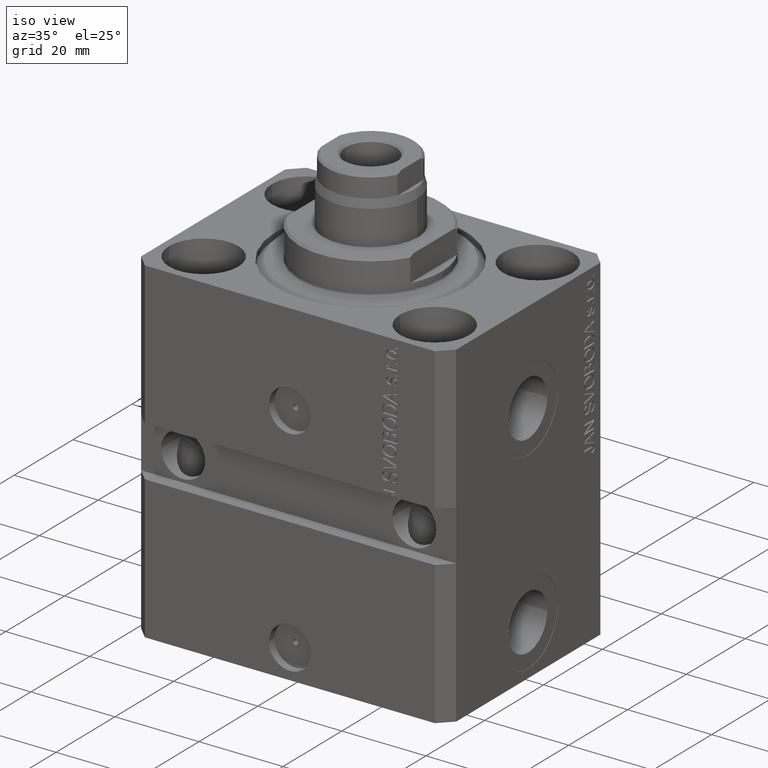
[diagram: clean part render]
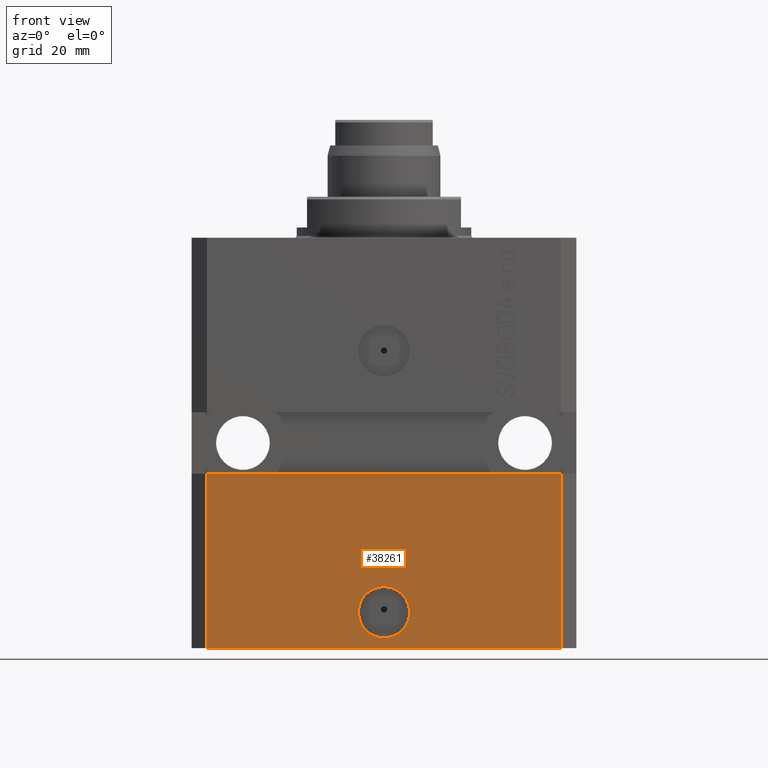
[diagram: tour spotlight — one face highlighted and labeled with its STEP entity id]
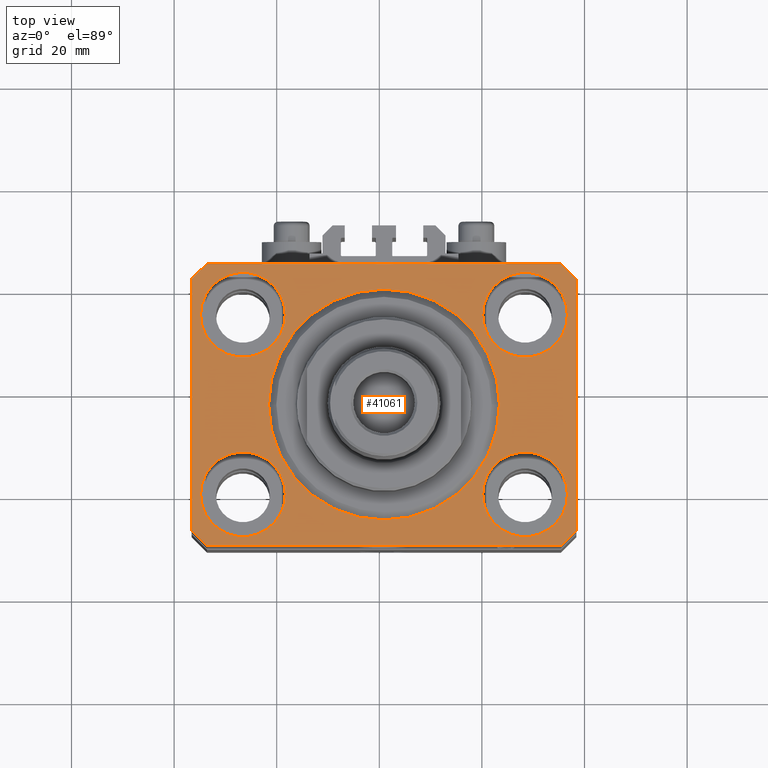
[diagram: tour spotlight — one face highlighted and labeled with its STEP entity id]
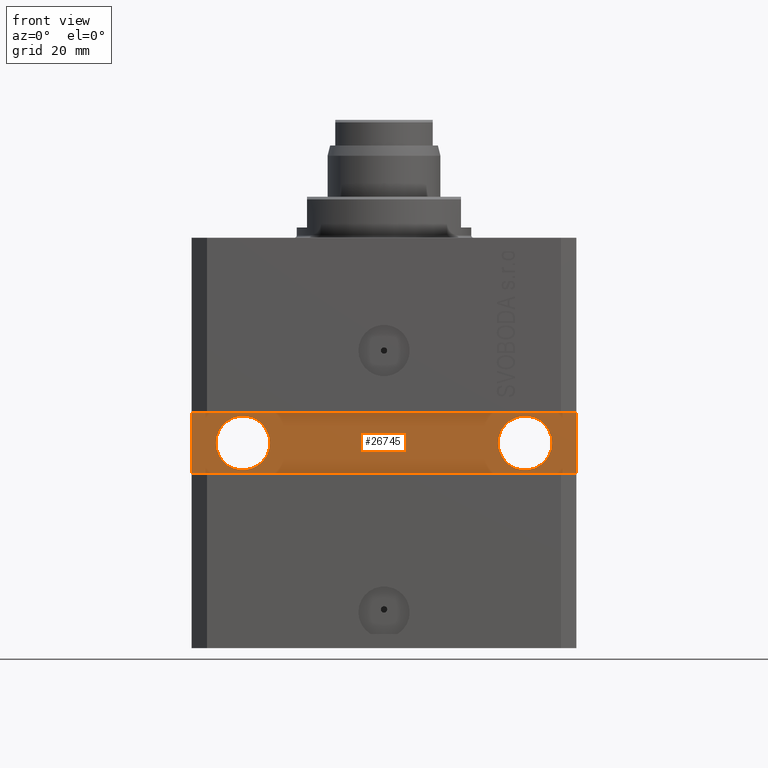
[diagram: tour spotlight — one face highlighted and labeled with its STEP entity id]
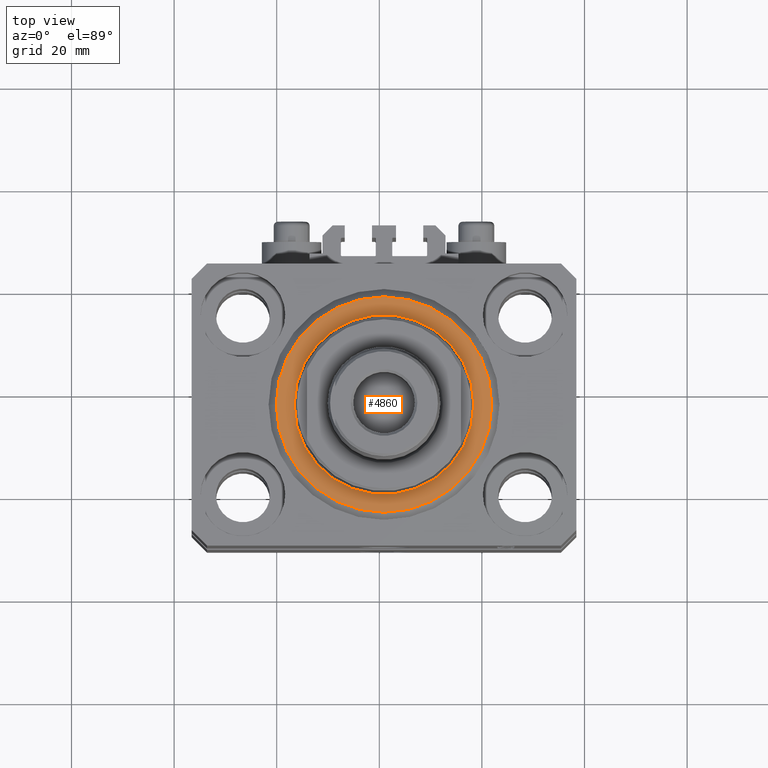
[diagram: tour spotlight — one face highlighted and labeled with its STEP entity id]
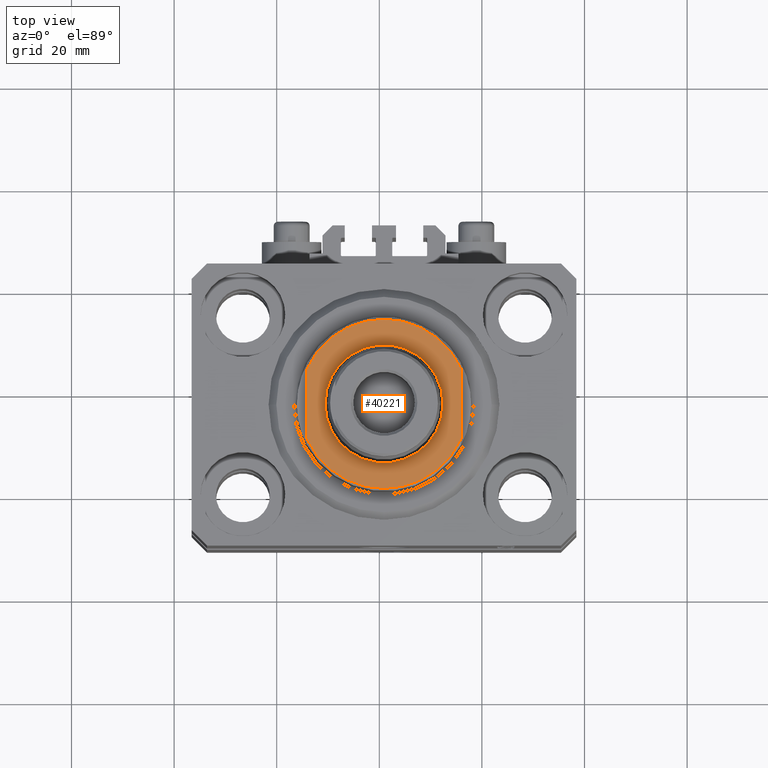
[diagram: tour spotlight — one face highlighted and labeled with its STEP entity id]
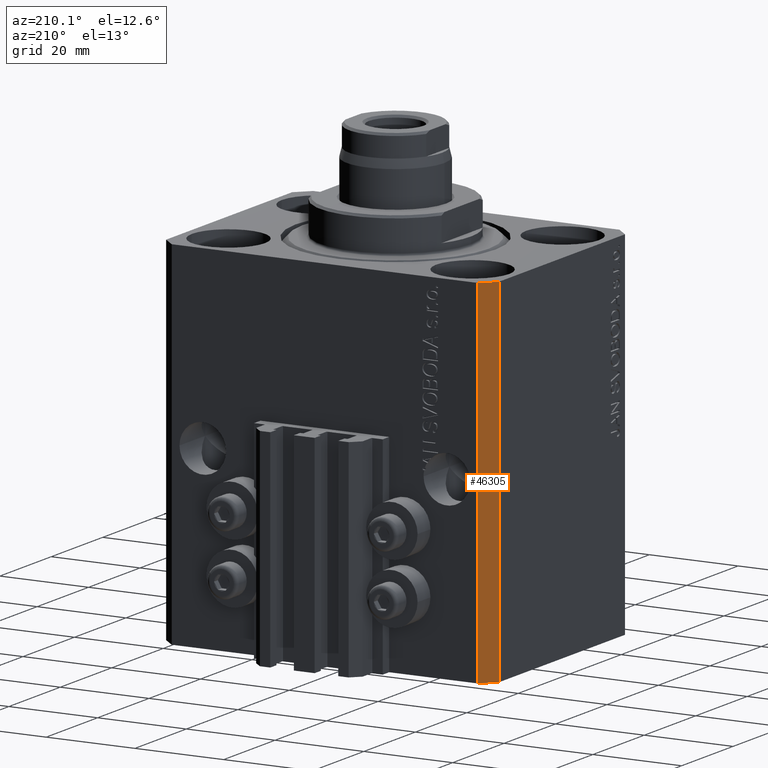
[diagram: tour spotlight — one face highlighted and labeled with its STEP entity id]
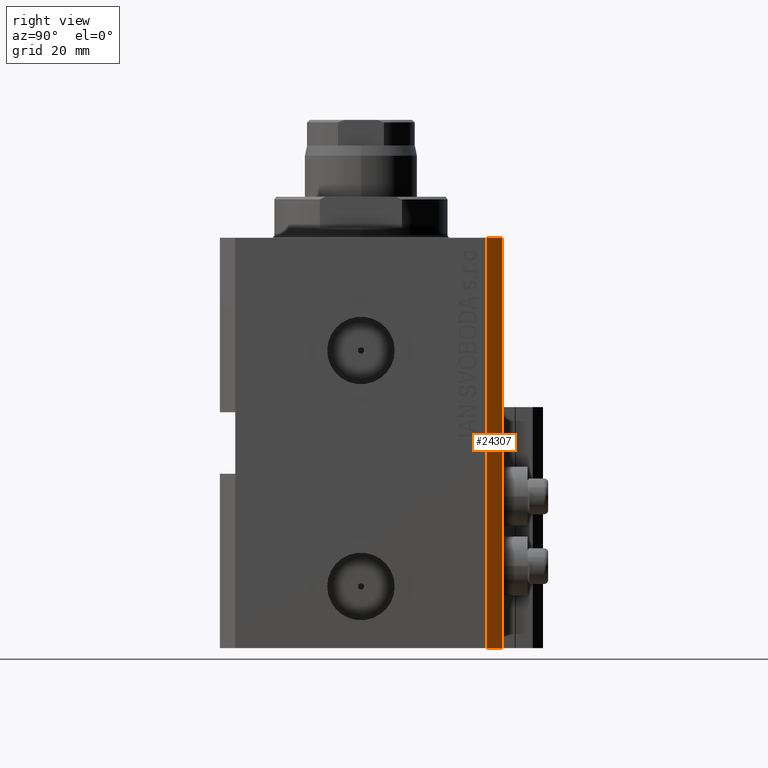
[diagram: tour spotlight — one face highlighted and labeled with its STEP entity id]
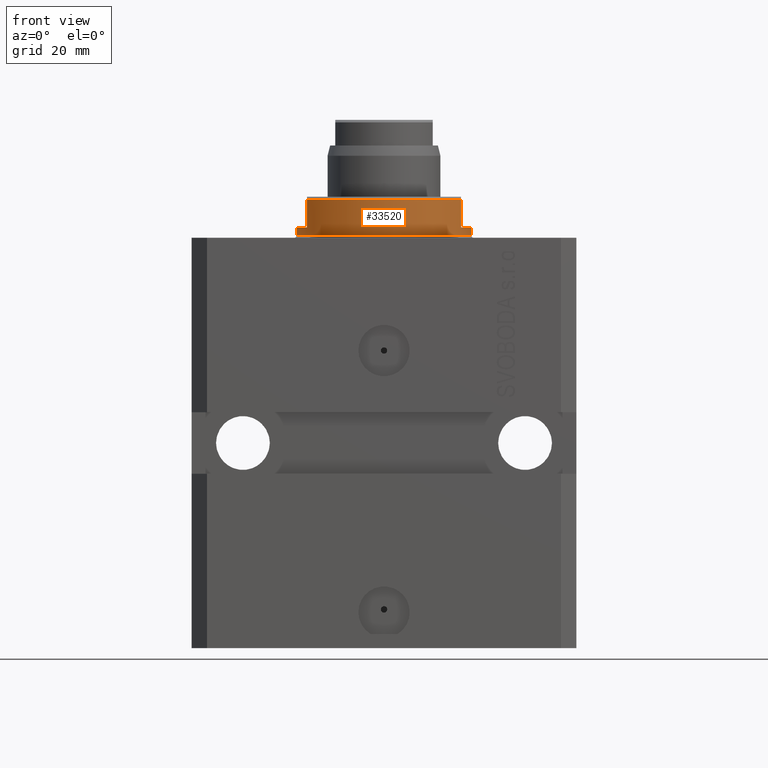
[diagram: tour spotlight — one face highlighted and labeled with its STEP entity id]
A machine part: a face-by-face anatomy tour. The part has 1061 B-rep faces; the first image is the clean iso view, then the 8 largest visible faces are spotlighted one at a time (largest first), each with its STEP entity span.

Face 1 — front view, entity #38261. In plain terms, the highlighted planar face has unit normal (0, -1, 0).
Definition (entity closure, byte-faithful):
#57 = AXIS2_PLACEMENT_3D ( 'NONE', #37444, #23475, #1932 ) ;
#893 = EDGE_CURVE ( 'NONE', #21298, #22198, #42517, .T. ) ;
#998 = CARTESIAN_POINT ( 'NONE',  ( -34.49999999999998579, -27.49999999999999645, -80.00000000000000000 ) ) ;
#1932 = DIRECTION ( 'NONE',  ( 1.000000000000000000, 0.000000000000000000, 0.000000000000000000 ) ) ;
#2950 = EDGE_CURVE ( 'NONE', #14207, #32096, #34094, .T. ) ;
#4971 = CARTESIAN_POINT ( 'NONE',  ( -34.49999999999998579, -27.49999999999999645, -80.00000000000000000 ) ) ;
#5328 = EDGE_CURVE ( 'NONE', #21298, #34619, #38150, .T. ) ;
#5649 = ORIENTED_EDGE ( 'NONE', *, *, #39212, .T. ) ;
#5728 = CARTESIAN_POINT ( 'NONE',  ( -34.49999999999998579, -27.49999999999999645, -80.00000000000000000 ) ) ;
#6340 = ORIENTED_EDGE ( 'NONE', *, *, #23097, .F. ) ;
#10093 = DIRECTION ( 'NONE',  ( 1.000000000000000000, 0.000000000000000000, 0.000000000000000000 ) ) ;
#10886 = EDGE_LOOP ( 'NONE', ( #17153, #28119, #22349, #5649 ) ) ;
#13863 = CARTESIAN_POINT ( 'NONE',  ( 34.49999999999999289, -27.49999999999999289, -46.00000000000000000 ) ) ;
#14207 = VERTEX_POINT ( 'NONE', #25752 ) ;
#14415 = DIRECTION ( 'NONE',  ( 0.000000000000000000, -0.000000000000000000, -1.000000000000000000 ) ) ;
#14516 = VECTOR ( 'NONE', #10093, 1000.000000000000000 ) ;
#16411 = LINE ( 'NONE', #24196, #40066 ) ;
#16613 = CARTESIAN_POINT ( 'NONE',  ( 34.49999999999999289, -27.49999999999999645, -80.00000000000000000 ) ) ;
#16989 = LINE ( 'NONE', #46087, #43504 ) ;
#17153 = ORIENTED_EDGE ( 'NONE', *, *, #25800, .F. ) ;
#21298 = VERTEX_POINT ( 'NONE', #998 ) ;
#22198 = VERTEX_POINT ( 'NONE', #16613 ) ;
#22349 = ORIENTED_EDGE ( 'NONE', *, *, #893, .T. ) ;
#23097 = EDGE_CURVE ( 'NONE', #32096, #14207, #25717, .T. ) ;
#23475 = DIRECTION ( 'NONE',  ( 1.176083712526788232E-16, -1.000000000000000000, 0.000000000000000000 ) ) ;
#23528 = DIRECTION ( 'NONE',  ( 1.000000000000000000, 0.000000000000000000, 0.000000000000000000 ) ) ;
#24196 = CARTESIAN_POINT ( 'NONE',  ( -37.50000000000000000, -27.50000000000000000, -46.00000000000000000 ) ) ;
#24462 = DIRECTION ( 'NONE',  ( 1.176083712526788232E-16, -1.000000000000000000, 0.000000000000000000 ) ) ;
#24550 = DIRECTION ( 'NONE',  ( 0.000000000000000000, 0.000000000000000000, 1.000000000000000000 ) ) ;
#24940 = EDGE_LOOP ( 'NONE', ( #6340, #30739 ) ) ;
#25717 = CIRCLE ( 'NONE', #43851, 5.000000000000006217 ) ;
#25752 = CARTESIAN_POINT ( 'NONE',  ( -5.000000000000006217, -27.49999999999999645, -73.00000000000000000 ) ) ;
#25800 = EDGE_CURVE ( 'NONE', #34619, #32590, #16411, .T. ) ;
#27081 = CARTESIAN_POINT ( 'NONE',  ( 0.000000000000000000, -27.49999999999999645, -73.00000000000000000 ) ) ;
#27980 = DIRECTION ( 'NONE',  ( 1.000000000000000000, 9.251858538542972814E-17, 0.000000000000000000 ) ) ;
#28119 = ORIENTED_EDGE ( 'NONE', *, *, #5328, .F. ) ;
#28851 = VECTOR ( 'NONE', #31057, 1000.000000000000000 ) ;
#30739 = ORIENTED_EDGE ( 'NONE', *, *, #2950, .F. ) ;
#31057 = DIRECTION ( 'NONE',  ( 0.000000000000000000, 0.000000000000000000, 1.000000000000000000 ) ) ;
#31335 = CARTESIAN_POINT ( 'NONE',  ( -34.49999999999998579, -27.50000000000000000, -46.00000000000000000 ) ) ;
#32096 = VERTEX_POINT ( 'NONE', #41973 ) ;
#32590 = VERTEX_POINT ( 'NONE', #13863 ) ;
#33099 = FACE_BOUND ( 'NONE', #24940, .T. ) ;
#34094 = CIRCLE ( 'NONE', #57, 5.000000000000006217 ) ;
#34619 = VERTEX_POINT ( 'NONE', #31335 ) ;
#35714 = PLANE ( 'NONE',  #44225 ) ;
#37444 = CARTESIAN_POINT ( 'NONE',  ( 0.000000000000000000, -27.49999999999999645, -73.00000000000000000 ) ) ;
#38150 = LINE ( 'NONE', #5728, #28851 ) ;
#38261 = ADVANCED_FACE ( 'NONE', ( #33099, #43512 ), #35714, .T. ) ;
#39212 = EDGE_CURVE ( 'NONE', #22198, #32590, #16989, .T. ) ;
#40066 = VECTOR ( 'NONE', #27980, 1000.000000000000000 ) ;
#41973 = CARTESIAN_POINT ( 'NONE',  ( 5.000000000000006217, -27.49999999999999645, -73.00000000000000000 ) ) ;
#42517 = LINE ( 'NONE', #4971, #14516 ) ;
#43504 = VECTOR ( 'NONE', #24550, 1000.000000000000000 ) ;
#43512 = FACE_OUTER_BOUND ( 'NONE', #10886, .T. ) ;
#43851 = AXIS2_PLACEMENT_3D ( 'NONE', #27081, #24462, #23528 ) ;
#44225 = AXIS2_PLACEMENT_3D ( 'NONE', #46830, #46600, #14415 ) ;
#46087 = CARTESIAN_POINT ( 'NONE',  ( 34.49999999999999289, -27.49999999999999645, -80.00000000000000000 ) ) ;
#46600 = DIRECTION ( 'NONE',  ( 0.000000000000000000, -1.000000000000000000, 0.000000000000000000 ) ) ;
#46830 = CARTESIAN_POINT ( 'NONE',  ( -34.49999999999998579, -27.49999999999999645, -80.00000000000000000 ) ) ;

Face 2 — top view, entity #41061. In plain terms, the highlighted planar face has unit normal (0, 0, 1).
Definition (entity closure, byte-faithful):
#1141 = VECTOR ( 'NONE', #44498, 1000.000000000000000 ) ;
#1627 = DIRECTION ( 'NONE',  ( 0.000000000000000000, 0.000000000000000000, 1.000000000000000000 ) ) ;
#1728 = CARTESIAN_POINT ( 'NONE',  ( 37.50000000000051870, 24.49999999999995381, 0.000000000000000000 ) ) ;
#1859 = CARTESIAN_POINT ( 'NONE',  ( -27.50000000000000355, -17.50000000000000000, 0.000000000000000000 ) ) ;
#2384 = EDGE_CURVE ( 'NONE', #44266, #8776, #35679, .T. ) ;
#3404 = VERTEX_POINT ( 'NONE', #26404 ) ;
#3434 = EDGE_CURVE ( 'NONE', #24403, #21497, #38613, .T. ) ;
#4041 = DIRECTION ( 'NONE',  ( 0.000000000000000000, 0.000000000000000000, 1.000000000000000000 ) ) ;
#5866 = VERTEX_POINT ( 'NONE', #28554 ) ;
#6003 = DIRECTION ( 'NONE',  ( 1.000000000000000000, 0.000000000000000000, 0.000000000000000000 ) ) ;
#6072 = VECTOR ( 'NONE', #16183, 1000.000000000000114 ) ;
#6366 = AXIS2_PLACEMENT_3D ( 'NONE', #9484, #45926, #24151 ) ;
#6443 = AXIS2_PLACEMENT_3D ( 'NONE', #35905, #42301, #35663 ) ;
#6691 = CARTESIAN_POINT ( 'NONE',  ( 34.49999999999999289, -27.49999999999999645, 0.000000000000000000 ) ) ;
#7662 = CIRCLE ( 'NONE', #16771, 8.250000000000000000 ) ;
#8027 = CARTESIAN_POINT ( 'NONE',  ( -34.49999999999999289, 27.50000000000000000, 0.000000000000000000 ) ) ;
#8509 = CARTESIAN_POINT ( 'NONE',  ( 37.49999999999999289, -24.50000000000000000, 0.000000000000000000 ) ) ;
#8637 = AXIS2_PLACEMENT_3D ( 'NONE', #30670, #27111, #41537 ) ;
#8720 = LINE ( 'NONE', #8027, #9448 ) ;
#8776 = VERTEX_POINT ( 'NONE', #46594 ) ;
#9072 = CARTESIAN_POINT ( 'NONE',  ( -37.49999999999999289, -24.50000000000000000, 0.000000000000000000 ) ) ;
#9140 = DIRECTION ( 'NONE',  ( 0.000000000000000000, 0.000000000000000000, 1.000000000000000000 ) ) ;
#9199 = DIRECTION ( 'NONE',  ( 0.000000000000000000, 0.000000000000000000, 1.000000000000000000 ) ) ;
#9448 = VECTOR ( 'NONE', #36901, 1000.000000000000000 ) ;
#9484 = CARTESIAN_POINT ( 'NONE',  ( 0.000000000000000000, 0.000000000000000000, 0.000000000000000000 ) ) ;
#9562 = LINE ( 'NONE', #23997, #32059 ) ;
#9949 = FACE_BOUND ( 'NONE', #36243, .T. ) ;
#10234 = VERTEX_POINT ( 'NONE', #16230 ) ;
#10291 = EDGE_CURVE ( 'NONE', #11976, #32802, #16191, .T. ) ;
#10399 = EDGE_CURVE ( 'NONE', #10234, #18086, #18451, .T. ) ;
#11161 = EDGE_LOOP ( 'NONE', ( #36001, #18258 ) ) ;
#11542 = CARTESIAN_POINT ( 'NONE',  ( -37.49999999999999289, -24.50000000000000000, 0.000000000000000000 ) ) ;
#11550 = CARTESIAN_POINT ( 'NONE',  ( 37.49999999999999289, -24.50000000000000000, 0.000000000000000000 ) ) ;
#11976 = VERTEX_POINT ( 'NONE', #18027 ) ;
#12090 = EDGE_CURVE ( 'NONE', #8776, #44266, #32128, .T. ) ;
#12512 = EDGE_CURVE ( 'NONE', #19158, #13430, #36649, .T. ) ;
#12994 = ORIENTED_EDGE ( 'NONE', *, *, #19614, .T. ) ;
#13152 = VECTOR ( 'NONE', #13747, 1000.000000000000000 ) ;
#13163 = EDGE_LOOP ( 'NONE', ( #37786, #42287 ) ) ;
#13194 = EDGE_LOOP ( 'NONE', ( #39625, #27974 ) ) ;
#13244 = ORIENTED_EDGE ( 'NONE', *, *, #10291, .F. ) ;
#13430 = VERTEX_POINT ( 'NONE', #14872 ) ;
#13747 = DIRECTION ( 'NONE',  ( 0.000000000000000000, -1.000000000000000000, 0.000000000000000000 ) ) ;
#13926 = AXIS2_PLACEMENT_3D ( 'NONE', #46354, #14403, #25277 ) ;
#13935 = CARTESIAN_POINT ( 'NONE',  ( 34.50000000000056843, 27.50000000000000000, 0.000000000000000000 ) ) ;
#14403 = DIRECTION ( 'NONE',  ( 0.000000000000000000, 0.000000000000000000, 1.000000000000000000 ) ) ;
#14872 = CARTESIAN_POINT ( 'NONE',  ( -35.75000000000000711, -17.50000000000000000, 0.000000000000000000 ) ) ;
#15286 = AXIS2_PLACEMENT_3D ( 'NONE', #41814, #9140, #34484 ) ;
#16183 = DIRECTION ( 'NONE',  ( -0.7071067811865356934, 0.7071067811865594521, 0.000000000000000000 ) ) ;
#16191 = CIRCLE ( 'NONE', #8637, 8.250000000000000000 ) ;
#16230 = CARTESIAN_POINT ( 'NONE',  ( 19.25000000000000000, 17.50000000000001066, 0.000000000000000000 ) ) ;
#16488 = ORIENTED_EDGE ( 'NONE', *, *, #10399, .F. ) ;
#16602 = PLANE ( 'NONE',  #6366 ) ;
#16716 = CARTESIAN_POINT ( 'NONE',  ( 35.74999999999999289, 17.50000000000001066, 0.000000000000000000 ) ) ;
#16771 = AXIS2_PLACEMENT_3D ( 'NONE', #1859, #1627, #20323 ) ;
#16946 = DIRECTION ( 'NONE',  ( 1.000000000000000000, 0.000000000000000000, 0.000000000000000000 ) ) ;
#17240 = ORIENTED_EDGE ( 'NONE', *, *, #20210, .T. ) ;
#17475 = ORIENTED_EDGE ( 'NONE', *, *, #36431, .T. ) ;
#17751 = LINE ( 'NONE', #46848, #29926 ) ;
#17960 = EDGE_CURVE ( 'NONE', #18086, #10234, #21022, .T. ) ;
#18027 = CARTESIAN_POINT ( 'NONE',  ( 19.25000000000000000, -17.50000000000000000, 0.000000000000000000 ) ) ;
#18086 = VERTEX_POINT ( 'NONE', #16716 ) ;
#18258 = ORIENTED_EDGE ( 'NONE', *, *, #23479, .F. ) ;
#18423 = ORIENTED_EDGE ( 'NONE', *, *, #26706, .T. ) ;
#18451 = CIRCLE ( 'NONE', #13926, 8.249999999999992895 ) ;
#18723 = CARTESIAN_POINT ( 'NONE',  ( -27.50000000000000355, 17.50000000000000000, 0.000000000000000000 ) ) ;
#18982 = VERTEX_POINT ( 'NONE', #9072 ) ;
#19158 = VERTEX_POINT ( 'NONE', #35570 ) ;
#19614 = EDGE_CURVE ( 'NONE', #18982, #5866, #30212, .T. ) ;
#20210 = EDGE_CURVE ( 'NONE', #3404, #20941, #39124, .T. ) ;
#20322 = ORIENTED_EDGE ( 'NONE', *, *, #41394, .T. ) ;
#20323 = DIRECTION ( 'NONE',  ( 1.000000000000000000, 0.000000000000000000, 0.000000000000000000 ) ) ;
#20722 = CARTESIAN_POINT ( 'NONE',  ( 27.49999999999999645, 17.50000000000001066, 0.000000000000000000 ) ) ;
#20783 = VERTEX_POINT ( 'NONE', #13935 ) ;
#20808 = AXIS2_PLACEMENT_3D ( 'NONE', #18723, #4041, #25590 ) ;
#20941 = VERTEX_POINT ( 'NONE', #11550 ) ;
#21022 = CIRCLE ( 'NONE', #30863, 8.249999999999992895 ) ;
#21497 = VERTEX_POINT ( 'NONE', #38846 ) ;
#23479 = EDGE_CURVE ( 'NONE', #21497, #24403, #35577, .T. ) ;
#23997 = CARTESIAN_POINT ( 'NONE',  ( -34.49999999999998579, -27.49999999999999645, 0.000000000000000000 ) ) ;
#24151 = DIRECTION ( 'NONE',  ( 1.000000000000000000, 0.000000000000000000, -0.000000000000000000 ) ) ;
#24203 = EDGE_LOOP ( 'NONE', ( #25421, #16488 ) ) ;
#24263 = AXIS2_PLACEMENT_3D ( 'NONE', #38215, #30655, #30416 ) ;
#24265 = AXIS2_PLACEMENT_3D ( 'NONE', #36861, #28826, #29529 ) ;
#24389 = FACE_BOUND ( 'NONE', #13163, .T. ) ;
#24403 = VERTEX_POINT ( 'NONE', #45715 ) ;
#25277 = DIRECTION ( 'NONE',  ( 1.000000000000000000, 0.000000000000000000, 0.000000000000000000 ) ) ;
#25421 = ORIENTED_EDGE ( 'NONE', *, *, #17960, .F. ) ;
#25590 = DIRECTION ( 'NONE',  ( 1.000000000000000000, 0.000000000000000000, 0.000000000000000000 ) ) ;
#26207 = DIRECTION ( 'NONE',  ( 0.7071067811865483499, -0.7071067811865466846, 0.000000000000000000 ) ) ;
#26404 = CARTESIAN_POINT ( 'NONE',  ( 34.49999999999999289, -27.49999999999999645, 0.000000000000000000 ) ) ;
#26428 = ORIENTED_EDGE ( 'NONE', *, *, #37656, .T. ) ;
#26706 = EDGE_CURVE ( 'NONE', #36921, #20783, #34165, .T. ) ;
#27111 = DIRECTION ( 'NONE',  ( 0.000000000000000000, 0.000000000000000000, 1.000000000000000000 ) ) ;
#27974 = ORIENTED_EDGE ( 'NONE', *, *, #2384, .F. ) ;
#28506 = CARTESIAN_POINT ( 'NONE',  ( 35.75000000000000711, -17.50000000000000000, 0.000000000000000000 ) ) ;
#28554 = CARTESIAN_POINT ( 'NONE',  ( -34.49999999999998579, -27.49999999999999645, 0.000000000000000000 ) ) ;
#28826 = DIRECTION ( 'NONE',  ( 0.000000000000000000, 0.000000000000000000, 1.000000000000000000 ) ) ;
#28876 = CARTESIAN_POINT ( 'NONE',  ( -37.49999999999999289, 24.50000000000000000, 0.000000000000000000 ) ) ;
#28972 = ORIENTED_EDGE ( 'NONE', *, *, #44767, .T. ) ;
#29396 = CARTESIAN_POINT ( 'NONE',  ( -37.49999999999999289, 24.50000000000000000, 0.000000000000000000 ) ) ;
#29529 = DIRECTION ( 'NONE',  ( 1.000000000000000000, 0.000000000000000000, 0.000000000000000000 ) ) ;
#29884 = EDGE_CURVE ( 'NONE', #32802, #11976, #37158, .T. ) ;
#29923 = EDGE_CURVE ( 'NONE', #13430, #19158, #7662, .T. ) ;
#29926 = VECTOR ( 'NONE', #32185, 1000.000000000000000 ) ;
#30212 = LINE ( 'NONE', #11542, #37707 ) ;
#30416 = DIRECTION ( 'NONE',  ( 1.000000000000000000, 0.000000000000000000, 0.000000000000000000 ) ) ;
#30655 = DIRECTION ( 'NONE',  ( 0.000000000000000000, 0.000000000000000000, 1.000000000000000000 ) ) ;
#30670 = CARTESIAN_POINT ( 'NONE',  ( 27.50000000000000355, -17.50000000000000000, 0.000000000000000000 ) ) ;
#30863 = AXIS2_PLACEMENT_3D ( 'NONE', #20722, #35161, #16946 ) ;
#30983 = CARTESIAN_POINT ( 'NONE',  ( 27.50000000000000355, -17.50000000000000000, 0.000000000000000000 ) ) ;
#31317 = CARTESIAN_POINT ( 'NONE',  ( -35.75000000000000711, 17.50000000000000000, 0.000000000000000000 ) ) ;
#32059 = VECTOR ( 'NONE', #6003, 1000.000000000000000 ) ;
#32128 = CIRCLE ( 'NONE', #20808, 8.250000000000000000 ) ;
#32185 = DIRECTION ( 'NONE',  ( -1.000000000000000000, 0.000000000000000000, 0.000000000000000000 ) ) ;
#32662 = LINE ( 'NONE', #28876, #13152 ) ;
#32802 = VERTEX_POINT ( 'NONE', #28506 ) ;
#34165 = LINE ( 'NONE', #1728, #6072 ) ;
#34309 = LINE ( 'NONE', #8509, #1141 ) ;
#34484 = DIRECTION ( 'NONE',  ( 1.000000000000000000, 0.000000000000000000, 0.000000000000000000 ) ) ;
#34878 = EDGE_CURVE ( 'NONE', #40943, #18982, #32662, .T. ) ;
#35161 = DIRECTION ( 'NONE',  ( 0.000000000000000000, 0.000000000000000000, 1.000000000000000000 ) ) ;
#35570 = CARTESIAN_POINT ( 'NONE',  ( -19.25000000000000355, -17.50000000000000000, 0.000000000000000000 ) ) ;
#35577 = CIRCLE ( 'NONE', #24265, 22.50000000000000355 ) ;
#35663 = DIRECTION ( 'NONE',  ( 1.000000000000000000, 0.000000000000000000, 0.000000000000000000 ) ) ;
#35679 = CIRCLE ( 'NONE', #15286, 8.250000000000000000 ) ;
#35905 = CARTESIAN_POINT ( 'NONE',  ( -27.50000000000000355, -17.50000000000000000, 0.000000000000000000 ) ) ;
#36001 = ORIENTED_EDGE ( 'NONE', *, *, #3434, .F. ) ;
#36243 = EDGE_LOOP ( 'NONE', ( #42776, #13244 ) ) ;
#36380 = AXIS2_PLACEMENT_3D ( 'NONE', #30983, #9199, #38316 ) ;
#36431 = EDGE_CURVE ( 'NONE', #5866, #3404, #9562, .T. ) ;
#36649 = CIRCLE ( 'NONE', #6443, 8.250000000000000000 ) ;
#36861 = CARTESIAN_POINT ( 'NONE',  ( 0.000000000000000000, 0.000000000000000000, 0.000000000000000000 ) ) ;
#36901 = DIRECTION ( 'NONE',  ( -0.7071067811865471286, -0.7071067811865479058, 0.000000000000000000 ) ) ;
#36921 = VERTEX_POINT ( 'NONE', #46757 ) ;
#37158 = CIRCLE ( 'NONE', #36380, 8.250000000000000000 ) ;
#37656 = EDGE_CURVE ( 'NONE', #20941, #36921, #34309, .T. ) ;
#37707 = VECTOR ( 'NONE', #26207, 1000.000000000000000 ) ;
#37786 = ORIENTED_EDGE ( 'NONE', *, *, #12512, .F. ) ;
#37884 = FACE_BOUND ( 'NONE', #24203, .T. ) ;
#38215 = CARTESIAN_POINT ( 'NONE',  ( 0.000000000000000000, 0.000000000000000000, 0.000000000000000000 ) ) ;
#38316 = DIRECTION ( 'NONE',  ( 1.000000000000000000, 0.000000000000000000, 0.000000000000000000 ) ) ;
#38586 = FACE_BOUND ( 'NONE', #11161, .T. ) ;
#38613 = CIRCLE ( 'NONE', #24263, 22.50000000000000355 ) ;
#38846 = CARTESIAN_POINT ( 'NONE',  ( -22.50000000000000355, 2.755455298081545172E-15, 0.000000000000000000 ) ) ;
#39124 = LINE ( 'NONE', #6691, #46026 ) ;
#39625 = ORIENTED_EDGE ( 'NONE', *, *, #12090, .F. ) ;
#40664 = ORIENTED_EDGE ( 'NONE', *, *, #34878, .T. ) ;
#40929 = VERTEX_POINT ( 'NONE', #43358 ) ;
#40943 = VERTEX_POINT ( 'NONE', #29396 ) ;
#41061 = ADVANCED_FACE ( 'NONE', ( #24389, #9949, #37884, #42142, #38586, #42367 ), #16602, .T. ) ;
#41394 = EDGE_CURVE ( 'NONE', #40929, #40943, #8720, .T. ) ;
#41537 = DIRECTION ( 'NONE',  ( 1.000000000000000000, 0.000000000000000000, 0.000000000000000000 ) ) ;
#41814 = CARTESIAN_POINT ( 'NONE',  ( -27.50000000000000355, 17.50000000000000000, 0.000000000000000000 ) ) ;
#42142 = FACE_BOUND ( 'NONE', #13194, .T. ) ;
#42209 = EDGE_LOOP ( 'NONE', ( #28972, #20322, #40664, #12994, #17475, #17240, #26428, #18423 ) ) ;
#42287 = ORIENTED_EDGE ( 'NONE', *, *, #29923, .F. ) ;
#42301 = DIRECTION ( 'NONE',  ( 0.000000000000000000, 0.000000000000000000, 1.000000000000000000 ) ) ;
#42367 = FACE_OUTER_BOUND ( 'NONE', #42209, .T. ) ;
#42776 = ORIENTED_EDGE ( 'NONE', *, *, #29884, .F. ) ;
#42908 = DIRECTION ( 'NONE',  ( 0.7071067811865474617, 0.7071067811865474617, 0.000000000000000000 ) ) ;
#43358 = CARTESIAN_POINT ( 'NONE',  ( -34.49999999999999289, 27.50000000000000000, 0.000000000000000000 ) ) ;
#44266 = VERTEX_POINT ( 'NONE', #31317 ) ;
#44498 = DIRECTION ( 'NONE',  ( 1.076236605503979380E-14, 1.000000000000000000, 0.000000000000000000 ) ) ;
#44767 = EDGE_CURVE ( 'NONE', #20783, #40929, #17751, .T. ) ;
#45715 = CARTESIAN_POINT ( 'NONE',  ( 22.50000000000000355, 0.000000000000000000, 0.000000000000000000 ) ) ;
#45926 = DIRECTION ( 'NONE',  ( 0.000000000000000000, 0.000000000000000000, 1.000000000000000000 ) ) ;
#46026 = VECTOR ( 'NONE', #42908, 1000.000000000000114 ) ;
#46354 = CARTESIAN_POINT ( 'NONE',  ( 27.49999999999999645, 17.50000000000001066, 0.000000000000000000 ) ) ;
#46594 = CARTESIAN_POINT ( 'NONE',  ( -19.25000000000000355, 17.50000000000000000, 0.000000000000000000 ) ) ;
#46757 = CARTESIAN_POINT ( 'NONE',  ( 37.50000000000051870, 24.49999999999995381, 0.000000000000000000 ) ) ;
#46848 = CARTESIAN_POINT ( 'NONE',  ( 34.50000000000056843, 27.50000000000000000, 0.000000000000000000 ) ) ;

Face 3 — front view, entity #26745. In plain terms, the highlighted planar face has unit normal (0, -1, 0).
Definition (entity closure, byte-faithful):
#188 = EDGE_CURVE ( 'NONE', #15016, #27610, #10673, .T. ) ;
#1858 = VERTEX_POINT ( 'NONE', #39499 ) ;
#3509 = EDGE_CURVE ( 'NONE', #14013, #34223, #14297, .T. ) ;
#3686 = VERTEX_POINT ( 'NONE', #37681 ) ;
#4332 = CARTESIAN_POINT ( 'NONE',  ( -27.49999999999999289, -24.50000000000000000, -40.00000000000000711 ) ) ;
#4345 = EDGE_CURVE ( 'NONE', #1858, #42064, #9181, .T. ) ;
#5868 = LINE ( 'NONE', #23621, #22705 ) ;
#7085 = CIRCLE ( 'NONE', #19924, 5.249999999999994671 ) ;
#7087 = CARTESIAN_POINT ( 'NONE',  ( 37.49999999999999289, -24.49999999999999289, -33.99999999999998579 ) ) ;
#7437 = CARTESIAN_POINT ( 'NONE',  ( 37.49999999999999289, -24.49999999999999289, -33.99999999999998579 ) ) ;
#8625 = DIRECTION ( 'NONE',  ( 1.171720209325604191E-16, -1.000000000000000000, 0.000000000000000000 ) ) ;
#9181 = CIRCLE ( 'NONE', #12205, 5.249999999999997335 ) ;
#9494 = VECTOR ( 'NONE', #32300, 1000.000000000000000 ) ;
#9566 = EDGE_CURVE ( 'NONE', #27610, #15016, #7085, .T. ) ;
#10028 = CIRCLE ( 'NONE', #38787, 5.249999999999997335 ) ;
#10673 = CIRCLE ( 'NONE', #12176, 5.249999999999994671 ) ;
#11798 = ORIENTED_EDGE ( 'NONE', *, *, #9566, .F. ) ;
#11874 = ORIENTED_EDGE ( 'NONE', *, *, #188, .F. ) ;
#12176 = AXIS2_PLACEMENT_3D ( 'NONE', #18600, #8625, #25928 ) ;
#12205 = AXIS2_PLACEMENT_3D ( 'NONE', #4332, #14779, #25647 ) ;
#14013 = VERTEX_POINT ( 'NONE', #24816 ) ;
#14297 = LINE ( 'NONE', #24933, #18214 ) ;
#14779 = DIRECTION ( 'NONE',  ( 1.101411730780568590E-16, -1.000000000000000000, 0.000000000000000000 ) ) ;
#15016 = VERTEX_POINT ( 'NONE', #41009 ) ;
#15648 = CARTESIAN_POINT ( 'NONE',  ( 27.50000000000000711, -24.49999999999999289, -40.00000000000000000 ) ) ;
#17871 = LINE ( 'NONE', #7437, #9494 ) ;
#17995 = CARTESIAN_POINT ( 'NONE',  ( -22.24999999999999645, -24.50000000000000000, -40.00000000000000711 ) ) ;
#18214 = VECTOR ( 'NONE', #39605, 1000.000000000000000 ) ;
#18600 = CARTESIAN_POINT ( 'NONE',  ( 27.50000000000000711, -24.49999999999999289, -40.00000000000000000 ) ) ;
#19496 = CARTESIAN_POINT ( 'NONE',  ( 32.75000000000000000, -24.49999999999999289, -40.00000000000000000 ) ) ;
#19615 = EDGE_LOOP ( 'NONE', ( #27002, #20172 ) ) ;
#19924 = AXIS2_PLACEMENT_3D ( 'NONE', #15648, #26754, #44509 ) ;
#20172 = ORIENTED_EDGE ( 'NONE', *, *, #4345, .F. ) ;
#20357 = CARTESIAN_POINT ( 'NONE',  ( -27.49999999999999289, -24.50000000000000000, -40.00000000000000711 ) ) ;
#20896 = FACE_BOUND ( 'NONE', #31596, .T. ) ;
#22616 = VERTEX_POINT ( 'NONE', #35455 ) ;
#22705 = VECTOR ( 'NONE', #27410, 1000.000000000000000 ) ;
#23584 = ORIENTED_EDGE ( 'NONE', *, *, #26429, .T. ) ;
#23621 = CARTESIAN_POINT ( 'NONE',  ( -37.50000000000000000, -24.50000000000000000, -46.00000000000000000 ) ) ;
#24816 = CARTESIAN_POINT ( 'NONE',  ( 37.49999999999999289, -24.49999999999999289, -46.00000000000000000 ) ) ;
#24933 = CARTESIAN_POINT ( 'NONE',  ( 37.49999999999999289, -24.49999999999999289, -46.00000000000000000 ) ) ;
#25647 = DIRECTION ( 'NONE',  ( 1.000000000000000000, 0.000000000000000000, 0.000000000000000000 ) ) ;
#25928 = DIRECTION ( 'NONE',  ( 1.000000000000000000, 0.000000000000000000, 0.000000000000000000 ) ) ;
#26429 = EDGE_CURVE ( 'NONE', #3686, #14013, #5868, .T. ) ;
#26745 = ADVANCED_FACE ( 'NONE', ( #20896, #27990, #45511 ), #38646, .T. ) ;
#26754 = DIRECTION ( 'NONE',  ( 1.171720209325604191E-16, -1.000000000000000000, 0.000000000000000000 ) ) ;
#27002 = ORIENTED_EDGE ( 'NONE', *, *, #33196, .F. ) ;
#27410 = DIRECTION ( 'NONE',  ( 1.000000000000000000, 9.251858538542972814E-17, 0.000000000000000000 ) ) ;
#27610 = VERTEX_POINT ( 'NONE', #19496 ) ;
#27773 = DIRECTION ( 'NONE',  ( 9.251858538542972814E-17, -1.000000000000000000, 0.000000000000000000 ) ) ;
#27990 = FACE_BOUND ( 'NONE', #19615, .T. ) ;
#30854 = DIRECTION ( 'NONE',  ( 1.000000000000000000, 9.251858538542972814E-17, 0.000000000000000000 ) ) ;
#31230 = ORIENTED_EDGE ( 'NONE', *, *, #3509, .T. ) ;
#31596 = EDGE_LOOP ( 'NONE', ( #11798, #11874 ) ) ;
#32300 = DIRECTION ( 'NONE',  ( -1.000000000000000000, -9.251858538542972814E-17, -1.850371707708594563E-16 ) ) ;
#33196 = EDGE_CURVE ( 'NONE', #42064, #1858, #10028, .T. ) ;
#34223 = VERTEX_POINT ( 'NONE', #7087 ) ;
#34331 = DIRECTION ( 'NONE',  ( 1.000000000000000000, 0.000000000000000000, 0.000000000000000000 ) ) ;
#35455 = CARTESIAN_POINT ( 'NONE',  ( -37.50000000000000000, -24.50000000000000000, -34.00000000000000000 ) ) ;
#35559 = CARTESIAN_POINT ( 'NONE',  ( 2.191435984341280931E-15, -24.49999999999999645, 0.000000000000000000 ) ) ;
#35929 = ORIENTED_EDGE ( 'NONE', *, *, #44499, .T. ) ;
#37187 = DIRECTION ( 'NONE',  ( 0.000000000000000000, 0.000000000000000000, -1.000000000000000000 ) ) ;
#37681 = CARTESIAN_POINT ( 'NONE',  ( -37.50000000000000000, -24.50000000000000000, -46.00000000000000000 ) ) ;
#37810 = EDGE_LOOP ( 'NONE', ( #23584, #31230, #43283, #35929 ) ) ;
#38352 = DIRECTION ( 'NONE',  ( 1.101411730780568590E-16, -1.000000000000000000, 0.000000000000000000 ) ) ;
#38646 = PLANE ( 'NONE',  #41625 ) ;
#38787 = AXIS2_PLACEMENT_3D ( 'NONE', #20357, #38352, #34331 ) ;
#39499 = CARTESIAN_POINT ( 'NONE',  ( -32.74999999999999289, -24.50000000000000000, -40.00000000000000711 ) ) ;
#39605 = DIRECTION ( 'NONE',  ( 0.000000000000000000, 0.000000000000000000, 1.000000000000000000 ) ) ;
#39646 = EDGE_CURVE ( 'NONE', #34223, #22616, #17871, .T. ) ;
#40516 = CARTESIAN_POINT ( 'NONE',  ( -37.50000000000000000, -24.50000000000000000, -34.00000000000000000 ) ) ;
#41009 = CARTESIAN_POINT ( 'NONE',  ( 22.25000000000001421, -24.49999999999999289, -40.00000000000000000 ) ) ;
#41625 = AXIS2_PLACEMENT_3D ( 'NONE', #35559, #27773, #30854 ) ;
#42064 = VERTEX_POINT ( 'NONE', #17995 ) ;
#43283 = ORIENTED_EDGE ( 'NONE', *, *, #39646, .T. ) ;
#43493 = VECTOR ( 'NONE', #37187, 1000.000000000000000 ) ;
#44062 = LINE ( 'NONE', #40516, #43493 ) ;
#44499 = EDGE_CURVE ( 'NONE', #22616, #3686, #44062, .T. ) ;
#44509 = DIRECTION ( 'NONE',  ( 1.000000000000000000, 0.000000000000000000, 0.000000000000000000 ) ) ;
#45511 = FACE_OUTER_BOUND ( 'NONE', #37810, .T. ) ;

Face 4 — top view, entity #4860. In plain terms, the highlighted planar face has unit normal (0, 0, -1).
Definition (entity closure, byte-faithful):
#1757 = PLANE ( 'NONE',  #19792 ) ;
#2011 = DIRECTION ( 'NONE',  ( -0.000000000000000000, -0.000000000000000000, -1.000000000000000000 ) ) ;
#4669 = VERTEX_POINT ( 'NONE', #32936 ) ;
#4860 = ADVANCED_FACE ( 'NONE', ( #30174, #37504 ), #1757, .F. ) ;
#5561 = CARTESIAN_POINT ( 'NONE',  ( 0.000000000000000000, 0.000000000000000000, 0.000000000000000000 ) ) ;
#5725 = CARTESIAN_POINT ( 'NONE',  ( 0.000000000000000000, 0.000000000000000000, 0.000000000000000000 ) ) ;
#7545 = DIRECTION ( 'NONE',  ( 1.000000000000000000, 0.000000000000000000, 0.000000000000000000 ) ) ;
#7930 = EDGE_CURVE ( 'NONE', #34158, #8873, #43338, .T. ) ;
#8873 = VERTEX_POINT ( 'NONE', #24245 ) ;
#9570 = DIRECTION ( 'NONE',  ( 1.000000000000000000, 0.000000000000000000, 0.000000000000000000 ) ) ;
#10311 = EDGE_CURVE ( 'NONE', #8873, #34158, #30543, .T. ) ;
#11906 = DIRECTION ( 'NONE',  ( 0.000000000000000000, 0.000000000000000000, 1.000000000000000000 ) ) ;
#12908 = DIRECTION ( 'NONE',  ( 1.000000000000000000, 0.000000000000000000, 0.000000000000000000 ) ) ;
#13379 = ORIENTED_EDGE ( 'NONE', *, *, #10311, .T. ) ;
#13424 = ORIENTED_EDGE ( 'NONE', *, *, #7930, .T. ) ;
#14219 = CARTESIAN_POINT ( 'NONE',  ( 17.50000000000000000, 0.000000000000000000, -2.168404344971008868E-16 ) ) ;
#18441 = CARTESIAN_POINT ( 'NONE',  ( 0.000000000000000000, 0.000000000000000000, 0.000000000000000000 ) ) ;
#19792 = AXIS2_PLACEMENT_3D ( 'NONE', #33506, #22614, #26399 ) ;
#21760 = DIRECTION ( 'NONE',  ( 0.000000000000000000, 0.000000000000000000, 1.000000000000000000 ) ) ;
#22614 = DIRECTION ( 'NONE',  ( 0.000000000000000000, 0.000000000000000000, 1.000000000000000000 ) ) ;
#23877 = EDGE_LOOP ( 'NONE', ( #43311, #44142 ) ) ;
#24021 = EDGE_LOOP ( 'NONE', ( #13379, #13424 ) ) ;
#24245 = CARTESIAN_POINT ( 'NONE',  ( 20.99999999999998934, 0.000000000000000000, 0.000000000000000000 ) ) ;
#25265 = AXIS2_PLACEMENT_3D ( 'NONE', #5561, #2011, #12908 ) ;
#26399 = DIRECTION ( 'NONE',  ( 1.000000000000000000, 0.000000000000000000, -0.000000000000000000 ) ) ;
#27034 = DIRECTION ( 'NONE',  ( 1.000000000000000000, 0.000000000000000000, 0.000000000000000000 ) ) ;
#29082 = AXIS2_PLACEMENT_3D ( 'NONE', #5725, #11906, #27034 ) ;
#29665 = CIRCLE ( 'NONE', #38721, 17.50000000000000000 ) ;
#30174 = FACE_BOUND ( 'NONE', #23877, .T. ) ;
#30543 = CIRCLE ( 'NONE', #25265, 20.99999999999998934 ) ;
#30802 = CARTESIAN_POINT ( 'NONE',  ( -20.99999999999998934, 2.663606788145492628E-15, 0.000000000000000000 ) ) ;
#31474 = EDGE_CURVE ( 'NONE', #34914, #4669, #29665, .T. ) ;
#31990 = AXIS2_PLACEMENT_3D ( 'NONE', #38675, #32035, #9570 ) ;
#32035 = DIRECTION ( 'NONE',  ( -0.000000000000000000, -0.000000000000000000, -1.000000000000000000 ) ) ;
#32087 = CIRCLE ( 'NONE', #29082, 17.50000000000000000 ) ;
#32936 = CARTESIAN_POINT ( 'NONE',  ( -17.50000000000000000, 2.143131898507868643E-15, -2.168404344971008868E-16 ) ) ;
#33506 = CARTESIAN_POINT ( 'NONE',  ( 0.000000000000000000, 0.000000000000000000, 0.000000000000000000 ) ) ;
#34158 = VERTEX_POINT ( 'NONE', #30802 ) ;
#34914 = VERTEX_POINT ( 'NONE', #14219 ) ;
#37338 = EDGE_CURVE ( 'NONE', #4669, #34914, #32087, .T. ) ;
#37504 = FACE_OUTER_BOUND ( 'NONE', #24021, .T. ) ;
#38675 = CARTESIAN_POINT ( 'NONE',  ( 0.000000000000000000, 0.000000000000000000, 0.000000000000000000 ) ) ;
#38721 = AXIS2_PLACEMENT_3D ( 'NONE', #18441, #21760, #7545 ) ;
#43311 = ORIENTED_EDGE ( 'NONE', *, *, #31474, .T. ) ;
#43338 = CIRCLE ( 'NONE', #31990, 20.99999999999998934 ) ;
#44142 = ORIENTED_EDGE ( 'NONE', *, *, #37338, .T. ) ;

Face 5 — top view, entity #40221. In plain terms, the highlighted planar face has unit normal (0, 0, 1).
Definition (entity closure, byte-faithful):
#1106 = AXIS2_PLACEMENT_3D ( 'NONE', #1550, #19089, #16241 ) ;
#1216 = DIRECTION ( 'NONE',  ( 0.000000000000000000, -1.000000000000000000, -0.000000000000000000 ) ) ;
#1322 = CARTESIAN_POINT ( 'NONE',  ( 0.000000000000000000, 0.000000000000000000, -8.000000000000000000 ) ) ;
#1550 = CARTESIAN_POINT ( 'NONE',  ( 0.000000000000000000, 0.000000000000000000, -8.000000000000000000 ) ) ;
#2265 = CARTESIAN_POINT ( 'NONE',  ( -14.99999999999999645, -6.873863542433749529, -8.000000000000000000 ) ) ;
#3516 = EDGE_CURVE ( 'NONE', #7348, #22911, #3839, .T. ) ;
#3839 = CIRCLE ( 'NONE', #45439, 16.49999999999999289 ) ;
#4126 = CARTESIAN_POINT ( 'NONE',  ( -11.49999999999999645, 0.000000000000000000, -8.000000000000000000 ) ) ;
#5168 = DIRECTION ( 'NONE',  ( 0.000000000000000000, 0.000000000000000000, -1.000000000000000000 ) ) ;
#5819 = CIRCLE ( 'NONE', #17922, 11.49999999999999645 ) ;
#6252 = CARTESIAN_POINT ( 'NONE',  ( 0.000000000000000000, 0.000000000000000000, -8.000000000000000000 ) ) ;
#7348 = VERTEX_POINT ( 'NONE', #25371 ) ;
#7425 = CARTESIAN_POINT ( 'NONE',  ( 0.000000000000000000, 0.000000000000000000, -8.000000000000000000 ) ) ;
#9737 = ORIENTED_EDGE ( 'NONE', *, *, #29222, .T. ) ;
#11927 = DIRECTION ( 'NONE',  ( -0.000000000000000000, -0.000000000000000000, 1.000000000000000000 ) ) ;
#12198 = ORIENTED_EDGE ( 'NONE', *, *, #31102, .T. ) ;
#12336 = LINE ( 'NONE', #34334, #39840 ) ;
#13056 = AXIS2_PLACEMENT_3D ( 'NONE', #1322, #45093, #29736 ) ;
#15639 = EDGE_CURVE ( 'NONE', #29657, #19402, #5819, .T. ) ;
#16241 = DIRECTION ( 'NONE',  ( -1.000000000000000000, 0.000000000000000000, -0.000000000000000000 ) ) ;
#16251 = EDGE_CURVE ( 'NONE', #19092, #7348, #12336, .T. ) ;
#17079 = ORIENTED_EDGE ( 'NONE', *, *, #16251, .T. ) ;
#17083 = EDGE_CURVE ( 'NONE', #44353, #22911, #27355, .T. ) ;
#17534 = CARTESIAN_POINT ( 'NONE',  ( 11.49999999999999645, 1.408343819019455781E-15, -8.000000000000000000 ) ) ;
#17908 = ORIENTED_EDGE ( 'NONE', *, *, #3516, .T. ) ;
#17922 = AXIS2_PLACEMENT_3D ( 'NONE', #7425, #11927, #19253 ) ;
#19089 = DIRECTION ( 'NONE',  ( 0.000000000000000000, 0.000000000000000000, -1.000000000000000000 ) ) ;
#19092 = VERTEX_POINT ( 'NONE', #32023 ) ;
#19253 = DIRECTION ( 'NONE',  ( -1.000000000000000000, 0.000000000000000000, 0.000000000000000000 ) ) ;
#19402 = VERTEX_POINT ( 'NONE', #17534 ) ;
#21627 = DIRECTION ( 'NONE',  ( 0.000000000000000000, 0.000000000000000000, -1.000000000000000000 ) ) ;
#22020 = CIRCLE ( 'NONE', #28849, 16.49999999999999289 ) ;
#22911 = VERTEX_POINT ( 'NONE', #2265 ) ;
#23804 = DIRECTION ( 'NONE',  ( -0.000000000000000000, -1.000000000000000000, -0.000000000000000000 ) ) ;
#23879 = DIRECTION ( 'NONE',  ( -1.000000000000000000, 0.000000000000000000, 0.000000000000000000 ) ) ;
#23998 = VECTOR ( 'NONE', #23804, 1000.000000000000000 ) ;
#24438 = CARTESIAN_POINT ( 'NONE',  ( -14.99999999999999645, 6.873863542433749529, -8.000000000000000000 ) ) ;
#24707 = DIRECTION ( 'NONE',  ( -1.000000000000000000, 0.000000000000000000, 0.000000000000000000 ) ) ;
#25371 = CARTESIAN_POINT ( 'NONE',  ( 14.99999999999999645, -6.873863542433749529, -8.000000000000000000 ) ) ;
#27355 = LINE ( 'NONE', #42256, #23998 ) ;
#28849 = AXIS2_PLACEMENT_3D ( 'NONE', #44708, #5168, #23879 ) ;
#29222 = EDGE_CURVE ( 'NONE', #44353, #19092, #22020, .T. ) ;
#29657 = VERTEX_POINT ( 'NONE', #4126 ) ;
#29736 = DIRECTION ( 'NONE',  ( -1.000000000000000000, 0.000000000000000000, 0.000000000000000000 ) ) ;
#30682 = FACE_OUTER_BOUND ( 'NONE', #41717, .T. ) ;
#31102 = EDGE_CURVE ( 'NONE', #19402, #29657, #38754, .T. ) ;
#32023 = CARTESIAN_POINT ( 'NONE',  ( 14.99999999999999645, 6.873863542433749529, -8.000000000000000000 ) ) ;
#34221 = PLANE ( 'NONE',  #1106 ) ;
#34334 = CARTESIAN_POINT ( 'NONE',  ( 15.00000000000000000, -42.42640687119285303, -8.000000000000000000 ) ) ;
#34544 = EDGE_LOOP ( 'NONE', ( #41580, #12198 ) ) ;
#38754 = CIRCLE ( 'NONE', #13056, 11.49999999999999645 ) ;
#39840 = VECTOR ( 'NONE', #1216, 1000.000000000000000 ) ;
#40221 = ADVANCED_FACE ( 'NONE', ( #45100, #30682 ), #34221, .T. ) ;
#41580 = ORIENTED_EDGE ( 'NONE', *, *, #15639, .T. ) ;
#41717 = EDGE_LOOP ( 'NONE', ( #9737, #17079, #17908, #46531 ) ) ;
#42256 = CARTESIAN_POINT ( 'NONE',  ( -15.00000000000000000, -42.42640687119285303, -8.000000000000000000 ) ) ;
#44353 = VERTEX_POINT ( 'NONE', #24438 ) ;
#44708 = CARTESIAN_POINT ( 'NONE',  ( 0.000000000000000000, 0.000000000000000000, -8.000000000000000000 ) ) ;
#45093 = DIRECTION ( 'NONE',  ( -0.000000000000000000, -0.000000000000000000, 1.000000000000000000 ) ) ;
#45100 = FACE_BOUND ( 'NONE', #34544, .T. ) ;
#45439 = AXIS2_PLACEMENT_3D ( 'NONE', #6252, #21627, #24707 ) ;
#46531 = ORIENTED_EDGE ( 'NONE', *, *, #17083, .F. ) ;

Face 6 — auxiliary view, entity #46305. In plain terms, the highlighted planar face has unit normal (-0.7071, 0.7071, 0).
Definition (entity closure, byte-faithful):
#64 = CARTESIAN_POINT ( 'NONE',  ( -37.49999999999999289, 24.50000000000000000, -80.00000000000000000 ) ) ;
#297 = DIRECTION ( 'NONE',  ( 0.000000000000000000, 0.000000000000000000, 1.000000000000000000 ) ) ;
#501 = ORIENTED_EDGE ( 'NONE', *, *, #21087, .T. ) ;
#848 = VERTEX_POINT ( 'NONE', #32916 ) ;
#1712 = ORIENTED_EDGE ( 'NONE', *, *, #30313, .F. ) ;
#3190 = DIRECTION ( 'NONE',  ( -0.7071067811865479058, 0.7071067811865471286, 0.000000000000000000 ) ) ;
#8027 = CARTESIAN_POINT ( 'NONE',  ( -34.49999999999999289, 27.50000000000000000, 0.000000000000000000 ) ) ;
#8720 = LINE ( 'NONE', #8027, #9448 ) ;
#9448 = VECTOR ( 'NONE', #36901, 1000.000000000000000 ) ;
#11262 = VECTOR ( 'NONE', #43138, 1000.000000000000000 ) ;
#11935 = CARTESIAN_POINT ( 'NONE',  ( -34.49999999999999289, 27.50000000000000000, -80.00000000000000000 ) ) ;
#12964 = VERTEX_POINT ( 'NONE', #11935 ) ;
#15089 = VECTOR ( 'NONE', #297, 1000.000000000000000 ) ;
#17599 = LINE ( 'NONE', #64, #15089 ) ;
#20189 = EDGE_CURVE ( 'NONE', #12964, #848, #28709, .T. ) ;
#21087 = EDGE_CURVE ( 'NONE', #848, #40943, #17599, .T. ) ;
#21308 = VECTOR ( 'NONE', #43804, 1000.000000000000000 ) ;
#25155 = CARTESIAN_POINT ( 'NONE',  ( -34.49999999999999289, 27.50000000000000000, -80.00000000000000000 ) ) ;
#25278 = ORIENTED_EDGE ( 'NONE', *, *, #20189, .T. ) ;
#28709 = LINE ( 'NONE', #25155, #11262 ) ;
#29396 = CARTESIAN_POINT ( 'NONE',  ( -37.49999999999999289, 24.50000000000000000, 0.000000000000000000 ) ) ;
#30313 = EDGE_CURVE ( 'NONE', #12964, #40929, #32693, .T. ) ;
#30654 = EDGE_LOOP ( 'NONE', ( #32488, #1712, #25278, #501 ) ) ;
#32457 = CARTESIAN_POINT ( 'NONE',  ( -34.49999999999999289, 27.50000000000000000, -80.00000000000000000 ) ) ;
#32488 = ORIENTED_EDGE ( 'NONE', *, *, #41394, .F. ) ;
#32693 = LINE ( 'NONE', #32457, #21308 ) ;
#32916 = CARTESIAN_POINT ( 'NONE',  ( -37.49999999999999289, 24.50000000000000000, -80.00000000000000000 ) ) ;
#35625 = PLANE ( 'NONE',  #40533 ) ;
#36901 = DIRECTION ( 'NONE',  ( -0.7071067811865471286, -0.7071067811865479058, 0.000000000000000000 ) ) ;
#38717 = FACE_OUTER_BOUND ( 'NONE', #30654, .T. ) ;
#40533 = AXIS2_PLACEMENT_3D ( 'NONE', #46049, #3190, #42263 ) ;
#40929 = VERTEX_POINT ( 'NONE', #43358 ) ;
#40943 = VERTEX_POINT ( 'NONE', #29396 ) ;
#41394 = EDGE_CURVE ( 'NONE', #40929, #40943, #8720, .T. ) ;
#42263 = DIRECTION ( 'NONE',  ( -0.7071067811865471286, -0.7071067811865479058, 0.000000000000000000 ) ) ;
#43138 = DIRECTION ( 'NONE',  ( -0.7071067811865471286, -0.7071067811865479058, 0.000000000000000000 ) ) ;
#43358 = CARTESIAN_POINT ( 'NONE',  ( -34.49999999999999289, 27.50000000000000000, 0.000000000000000000 ) ) ;
#43804 = DIRECTION ( 'NONE',  ( 0.000000000000000000, 0.000000000000000000, 1.000000000000000000 ) ) ;
#46049 = CARTESIAN_POINT ( 'NONE',  ( -34.49999999999999289, 27.50000000000000000, -80.00000000000000000 ) ) ;
#46305 = ADVANCED_FACE ( 'NONE', ( #38717 ), #35625, .T. ) ;

Face 7 — right view, entity #24307. In plain terms, the highlighted planar face has unit normal (0.7071, 0.7071, 0).
Definition (entity closure, byte-faithful):
#1728 = CARTESIAN_POINT ( 'NONE',  ( 37.50000000000051870, 24.49999999999995381, 0.000000000000000000 ) ) ;
#2842 = DIRECTION ( 'NONE',  ( -0.7071067811865356934, 0.7071067811865594521, 0.000000000000000000 ) ) ;
#6072 = VECTOR ( 'NONE', #16183, 1000.000000000000114 ) ;
#6625 = LINE ( 'NONE', #24627, #10666 ) ;
#6812 = DIRECTION ( 'NONE',  ( 0.000000000000000000, 0.000000000000000000, 1.000000000000000000 ) ) ;
#7677 = CARTESIAN_POINT ( 'NONE',  ( 34.50000000000056843, 27.50000000000000000, -80.00000000000000000 ) ) ;
#10208 = VECTOR ( 'NONE', #44232, 1000.000000000000000 ) ;
#10666 = VECTOR ( 'NONE', #2842, 1000.000000000000114 ) ;
#11008 = CARTESIAN_POINT ( 'NONE',  ( 37.50000000000051870, 24.49999999999995381, -80.00000000000000000 ) ) ;
#13935 = CARTESIAN_POINT ( 'NONE',  ( 34.50000000000056843, 27.50000000000000000, 0.000000000000000000 ) ) ;
#13943 = CARTESIAN_POINT ( 'NONE',  ( 34.50000000000056843, 27.50000000000000000, -80.00000000000000000 ) ) ;
#14042 = EDGE_CURVE ( 'NONE', #18115, #20783, #35468, .T. ) ;
#15365 = CARTESIAN_POINT ( 'NONE',  ( 37.50000000000051870, 24.49999999999995381, -80.00000000000000000 ) ) ;
#15452 = FACE_OUTER_BOUND ( 'NONE', #16534, .T. ) ;
#16183 = DIRECTION ( 'NONE',  ( -0.7071067811865356934, 0.7071067811865594521, 0.000000000000000000 ) ) ;
#16534 = EDGE_LOOP ( 'NONE', ( #21961, #46067, #29176, #16881 ) ) ;
#16881 = ORIENTED_EDGE ( 'NONE', *, *, #14042, .T. ) ;
#18115 = VERTEX_POINT ( 'NONE', #7677 ) ;
#18762 = CARTESIAN_POINT ( 'NONE',  ( 37.50000000000051870, 24.49999999999995381, -80.00000000000000000 ) ) ;
#19684 = PLANE ( 'NONE',  #40890 ) ;
#20783 = VERTEX_POINT ( 'NONE', #13935 ) ;
#21961 = ORIENTED_EDGE ( 'NONE', *, *, #26706, .F. ) ;
#22781 = DIRECTION ( 'NONE',  ( 0.7071067811865594521, 0.7071067811865356934, -0.000000000000000000 ) ) ;
#24307 = ADVANCED_FACE ( 'NONE', ( #15452 ), #19684, .T. ) ;
#24627 = CARTESIAN_POINT ( 'NONE',  ( 37.50000000000051870, 24.49999999999995381, -80.00000000000000000 ) ) ;
#25304 = LINE ( 'NONE', #15365, #10208 ) ;
#26120 = VECTOR ( 'NONE', #6812, 1000.000000000000000 ) ;
#26706 = EDGE_CURVE ( 'NONE', #36921, #20783, #34165, .T. ) ;
#28836 = EDGE_CURVE ( 'NONE', #40470, #18115, #6625, .T. ) ;
#29176 = ORIENTED_EDGE ( 'NONE', *, *, #28836, .T. ) ;
#34130 = DIRECTION ( 'NONE',  ( -0.7071067811865356934, 0.7071067811865594521, 0.000000000000000000 ) ) ;
#34165 = LINE ( 'NONE', #1728, #6072 ) ;
#35468 = LINE ( 'NONE', #13943, #26120 ) ;
#36921 = VERTEX_POINT ( 'NONE', #46757 ) ;
#40470 = VERTEX_POINT ( 'NONE', #11008 ) ;
#40890 = AXIS2_PLACEMENT_3D ( 'NONE', #18762, #22781, #34130 ) ;
#43904 = EDGE_CURVE ( 'NONE', #40470, #36921, #25304, .T. ) ;
#44232 = DIRECTION ( 'NONE',  ( 0.000000000000000000, 0.000000000000000000, 1.000000000000000000 ) ) ;
#46067 = ORIENTED_EDGE ( 'NONE', *, *, #43904, .F. ) ;
#46757 = CARTESIAN_POINT ( 'NONE',  ( 37.50000000000051870, 24.49999999999995381, 0.000000000000000000 ) ) ;

Face 8 — front view, entity #33520. In plain terms, the highlighted cylindrical surface (partial cylindrical patch) has radius 17 mm, axis along (0, 0, -1).
Definition (entity closure, byte-faithful):
#73 = ORIENTED_EDGE ( 'NONE', *, *, #14868, .T. ) ;
#488 = CARTESIAN_POINT ( 'NONE',  ( -14.99999999999999645, -8.000000000000003553, -2.000000000000000000 ) ) ;
#779 = EDGE_CURVE ( 'NONE', #3861, #11291, #18711, .T. ) ;
#1054 = CARTESIAN_POINT ( 'NONE',  ( 14.99999999999999645, -8.000000000000003553, -2.000000000000000000 ) ) ;
#1613 = VECTOR ( 'NONE', #29128, 1000.000000000000000 ) ;
#2002 = ORIENTED_EDGE ( 'NONE', *, *, #29232, .F. ) ;
#2246 = DIRECTION ( 'NONE',  ( -0.000000000000000000, -0.000000000000000000, 1.000000000000000000 ) ) ;
#3861 = VERTEX_POINT ( 'NONE', #488 ) ;
#5131 = EDGE_CURVE ( 'NONE', #8537, #33045, #10746, .T. ) ;
#5641 = CARTESIAN_POINT ( 'NONE',  ( 17.00000000000000000, 0.000000000000000000, -2.000000000000000000 ) ) ;
#6160 = ORIENTED_EDGE ( 'NONE', *, *, #30404, .T. ) ;
#6161 = ORIENTED_EDGE ( 'NONE', *, *, #779, .T. ) ;
#6588 = VECTOR ( 'NONE', #36522, 1000.000000000000000 ) ;
#6705 = ORIENTED_EDGE ( 'NONE', *, *, #5131, .T. ) ;
#8515 = CARTESIAN_POINT ( 'NONE',  ( -15.00000000000000000, -8.000000000000001776, -7.499999999999993783 ) ) ;
#8537 = VERTEX_POINT ( 'NONE', #18241 ) ;
#8563 = AXIS2_PLACEMENT_3D ( 'NONE', #34919, #2246, #16476 ) ;
#10746 = CIRCLE ( 'NONE', #43994, 17.00000000000000000 ) ;
#11111 = ORIENTED_EDGE ( 'NONE', *, *, #25901, .F. ) ;
#11291 = VERTEX_POINT ( 'NONE', #8515 ) ;
#12175 = CIRCLE ( 'NONE', #26534, 17.00000000000000000 ) ;
#13113 = DIRECTION ( 'NONE',  ( 0.000000000000000000, 0.000000000000000000, -1.000000000000000000 ) ) ;
#14868 = EDGE_CURVE ( 'NONE', #45981, #8537, #14998, .T. ) ;
#14998 = LINE ( 'NONE', #29425, #6588 ) ;
#15425 = CARTESIAN_POINT ( 'NONE',  ( -17.00000000000000000, 2.081899558550500280E-15, -0.5000000000000004441 ) ) ;
#15495 = ORIENTED_EDGE ( 'NONE', *, *, #18386, .F. ) ;
#16476 = DIRECTION ( 'NONE',  ( 1.000000000000000000, 0.000000000000000000, 0.000000000000000000 ) ) ;
#16643 = CARTESIAN_POINT ( 'NONE',  ( 0.000000000000000000, 0.000000000000000000, -2.000000000000000000 ) ) ;
#17397 = FACE_OUTER_BOUND ( 'NONE', #39481, .T. ) ;
#18241 = CARTESIAN_POINT ( 'NONE',  ( 17.00000000000000000, 0.000000000000000000, -0.5000000000000004441 ) ) ;
#18386 = EDGE_CURVE ( 'NONE', #36340, #28125, #31096, .T. ) ;
#18711 = LINE ( 'NONE', #33392, #1613 ) ;
#18998 = DIRECTION ( 'NONE',  ( 1.000000000000000000, 0.000000000000000000, 0.000000000000000000 ) ) ;
#19429 = CARTESIAN_POINT ( 'NONE',  ( 0.000000000000000000, 0.000000000000000000, -7.499999999999992895 ) ) ;
#23289 = VECTOR ( 'NONE', #13113, 1000.000000000000000 ) ;
#23680 = EDGE_CURVE ( 'NONE', #3861, #43756, #12175, .T. ) ;
#24034 = CYLINDRICAL_SURFACE ( 'NONE', #8563, 17.00000000000000000 ) ;
#24105 = LINE ( 'NONE', #38540, #46218 ) ;
#25812 = CIRCLE ( 'NONE', #46115, 17.00000000000000000 ) ;
#25850 = AXIS2_PLACEMENT_3D ( 'NONE', #19429, #27000, #30545 ) ;
#25901 = EDGE_CURVE ( 'NONE', #45981, #36340, #25812, .T. ) ;
#26534 = AXIS2_PLACEMENT_3D ( 'NONE', #33790, #41572, #30929 ) ;
#27000 = DIRECTION ( 'NONE',  ( 0.000000000000000000, 0.000000000000000000, 1.000000000000000000 ) ) ;
#27179 = CARTESIAN_POINT ( 'NONE',  ( 15.00000000000000000, -8.000000000000001776, -7.499999999999992895 ) ) ;
#28125 = VERTEX_POINT ( 'NONE', #27179 ) ;
#29128 = DIRECTION ( 'NONE',  ( 0.000000000000000000, 0.000000000000000000, -1.000000000000000000 ) ) ;
#29232 = EDGE_CURVE ( 'NONE', #43756, #33045, #24105, .T. ) ;
#29425 = CARTESIAN_POINT ( 'NONE',  ( 17.00000000000000000, 0.000000000000000000, -8.000000000000000000 ) ) ;
#30404 = EDGE_CURVE ( 'NONE', #11291, #28125, #37937, .T. ) ;
#30545 = DIRECTION ( 'NONE',  ( -1.000000000000000000, 0.000000000000000000, 0.000000000000000000 ) ) ;
#30929 = DIRECTION ( 'NONE',  ( -1.000000000000000000, 0.000000000000000000, 0.000000000000000000 ) ) ;
#31096 = LINE ( 'NONE', #45522, #23289 ) ;
#31214 = DIRECTION ( 'NONE',  ( -0.000000000000000000, -0.000000000000000000, 1.000000000000000000 ) ) ;
#33045 = VERTEX_POINT ( 'NONE', #15425 ) ;
#33392 = CARTESIAN_POINT ( 'NONE',  ( -15.00000000000000000, -8.000000000000001776, -8.000000000000000000 ) ) ;
#33520 = ADVANCED_FACE ( 'NONE', ( #17397 ), #24034, .T. ) ;
#33790 = CARTESIAN_POINT ( 'NONE',  ( 0.000000000000000000, 0.000000000000000000, -2.000000000000000000 ) ) ;
#33913 = CARTESIAN_POINT ( 'NONE',  ( 0.000000000000000000, 0.000000000000000000, -0.5000000000000004441 ) ) ;
#34820 = ORIENTED_EDGE ( 'NONE', *, *, #23680, .F. ) ;
#34919 = CARTESIAN_POINT ( 'NONE',  ( 0.000000000000000000, 0.000000000000000000, -8.000000000000000000 ) ) ;
#36340 = VERTEX_POINT ( 'NONE', #1054 ) ;
#36522 = DIRECTION ( 'NONE',  ( -0.000000000000000000, -0.000000000000000000, 1.000000000000000000 ) ) ;
#37937 = CIRCLE ( 'NONE', #25850, 17.00000000000000000 ) ;
#38540 = CARTESIAN_POINT ( 'NONE',  ( -17.00000000000000000, 2.081899558550500280E-15, -8.000000000000000000 ) ) ;
#38637 = DIRECTION ( 'NONE',  ( -1.000000000000000000, 0.000000000000000000, 0.000000000000000000 ) ) ;
#39481 = EDGE_LOOP ( 'NONE', ( #2002, #34820, #6161, #6160, #15495, #11111, #73, #6705 ) ) ;
#40310 = DIRECTION ( 'NONE',  ( -0.000000000000000000, -0.000000000000000000, -1.000000000000000000 ) ) ;
#41572 = DIRECTION ( 'NONE',  ( 0.000000000000000000, 0.000000000000000000, -1.000000000000000000 ) ) ;
#43756 = VERTEX_POINT ( 'NONE', #46374 ) ;
#43994 = AXIS2_PLACEMENT_3D ( 'NONE', #33913, #40310, #18998 ) ;
#45499 = DIRECTION ( 'NONE',  ( 0.000000000000000000, 0.000000000000000000, -1.000000000000000000 ) ) ;
#45522 = CARTESIAN_POINT ( 'NONE',  ( 15.00000000000000000, -8.000000000000001776, -8.000000000000000000 ) ) ;
#45981 = VERTEX_POINT ( 'NONE', #5641 ) ;
#46115 = AXIS2_PLACEMENT_3D ( 'NONE', #16643, #45499, #38637 ) ;
#46218 = VECTOR ( 'NONE', #31214, 1000.000000000000000 ) ;
#46374 = CARTESIAN_POINT ( 'NONE',  ( -17.00000000000000000, 2.081899558550500280E-15, -2.000000000000000000 ) ) ;